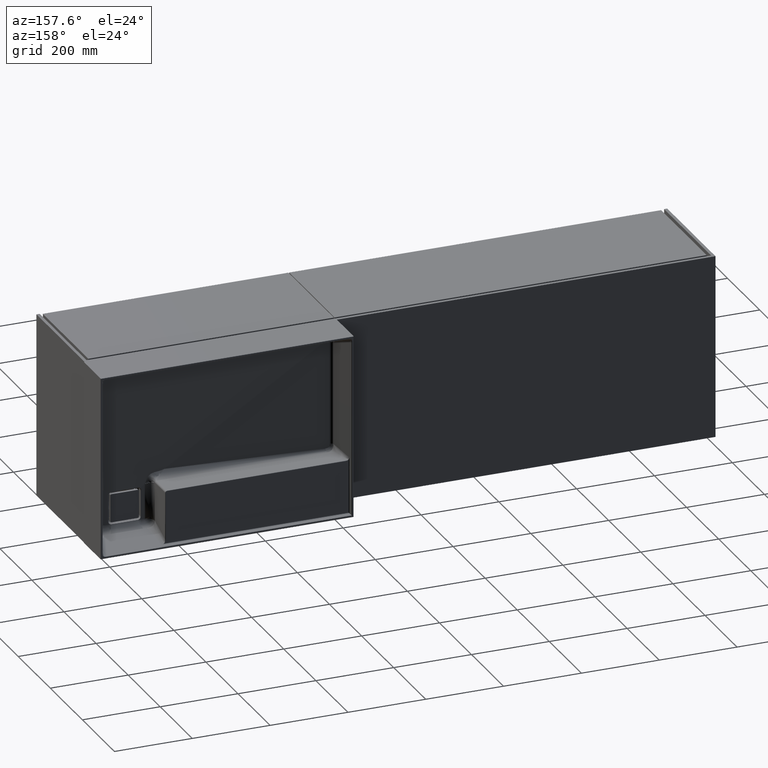
[diagram: clean part render]
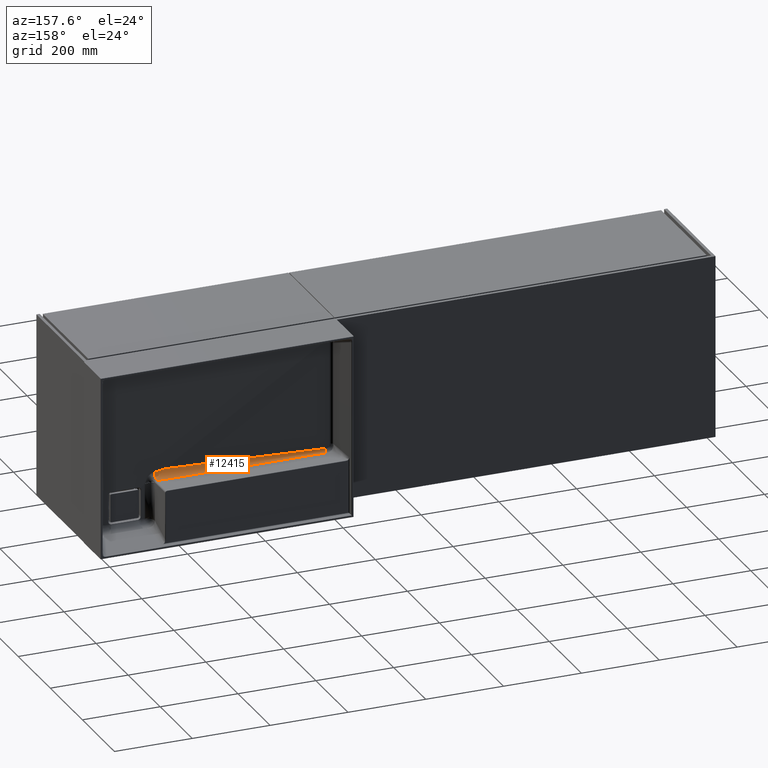
[diagram: same view with one face highlighted and labeled with its STEP entity id]
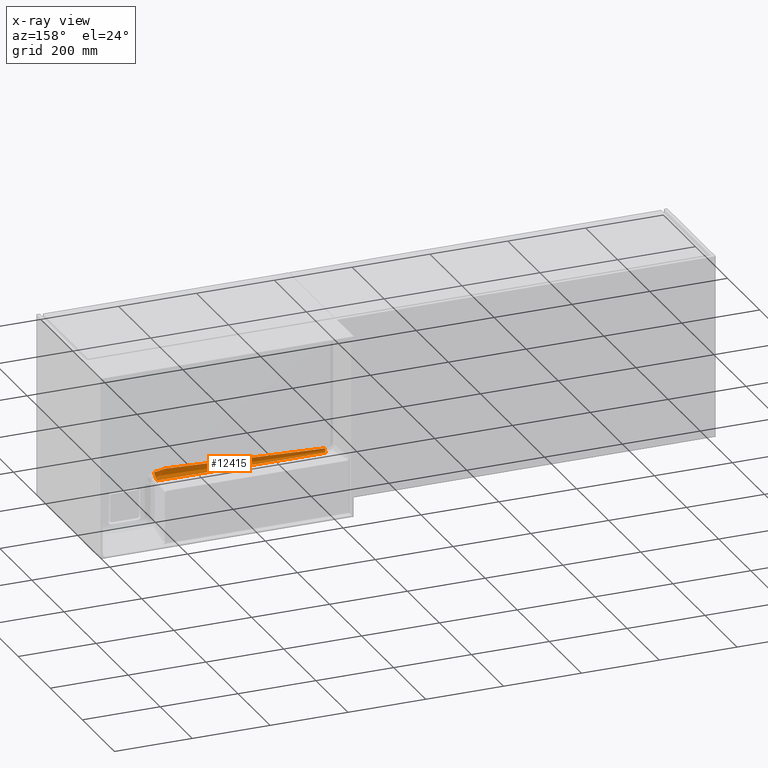
[diagram: x-ray of the same camera — body ghosted, the highlighted face saturated]
A machine part, auxiliary view. The second image highlights one B-rep face of the part: STEP entity #12415.
The next image is the same camera in x-ray: the body ghosted, the highlighted face saturated — about 0% of this face is hidden behind the body in this view.
In plain terms, the highlighted face is a freeform B-spline surface patch.
Its self-contained STEP definition (entity closure, byte-faithful):
#721 = CARTESIAN_POINT ( 'NONE',  ( 1018.068024518727725, 329.4440480074061384, -315.4900018526547569 ) ) ;
#1110 = CARTESIAN_POINT ( 'NONE',  ( 1451.584780743779675, 334.5450962275781421, -323.4169326313426609 ) ) ;
#1134 = CARTESIAN_POINT ( 'NONE',  ( 1425.672703907353252, 316.8349497930412895, -304.5496662463541497 ) ) ;
#1155 = CARTESIAN_POINT ( 'NONE',  ( 1162.628033684732827, 332.7665495266904827, -323.3703597469259421 ) ) ;
#1210 = CARTESIAN_POINT ( 'NONE',  ( 1436.064008319416871, 316.7100343581346920, -307.2012362778854708 ) ) ;
#1393 = CARTESIAN_POINT ( 'NONE',  ( 1451.584780743779675, 334.5450962275781421, -323.4169326313426609 ) ) ;
#1401 =( BOUNDED_SURFACE ( )  B_SPLINE_SURFACE ( 2, 3, ( 
 ( #721, #5705, #10708, #15700 ),
 ( #4482, #9479, #14474, #3261 ),
 ( #8245, #13250, #2024, #7013 ) ),
 .UNSPECIFIED., .F., .F., .F. ) 
 B_SPLINE_SURFACE_WITH_KNOTS ( ( 3, 3 ),
 ( 4, 4 ),
 ( 0.0000000000000000000, 1.000000000000000000 ),
 ( -0.4346882425457793686, -0.001543048426497325726 ),
 .UNSPECIFIED. ) 
 GEOMETRIC_REPRESENTATION_ITEM ( )  RATIONAL_B_SPLINE_SURFACE ( (
 ( 1.000000000000000000, 1.000000000000000000, 1.000000000000000000, 1.000000000000000000),
 ( 0.7162975751252874668, 0.7162975751252874668, 0.7162975751252874668, 0.7162975751252874668),
 ( 1.000000000000000000, 1.000000000000000000, 1.000000000000000000, 1.000000000000000000) ) ) 
 REPRESENTATION_ITEM ( '' )  SURFACE ( )  );
#2024 = CARTESIAN_POINT ( 'NONE',  ( 1307.272130256824084, 339.0093540719751104, -323.5338333371205977 ) ) ;
#2106 = ORIENTED_EDGE ( 'NONE', *, *, #5230, .T. ) ;
#2314 = CARTESIAN_POINT ( 'NONE',  ( 1451.018727805432036, 316.6229568114037534, -309.0496244574869706 ) ) ;
#2449 = CARTESIAN_POINT ( 'NONE',  ( 1431.297888460273043, 316.7503751772958935, -306.3449249084025041 ) ) ;
#2659 =( BOUNDED_CURVE ( )  B_SPLINE_CURVE ( 2, ( #15741, #4521, #9515 ),
 .UNSPECIFIED., .F., .F. ) 
 B_SPLINE_CURVE_WITH_KNOTS ( ( 3, 3 ),
 ( 0.0000000000000000000, 1.000000000000000000 ),
 .UNSPECIFIED. ) 
 CURVE ( )  GEOMETRIC_REPRESENTATION_ITEM ( )  RATIONAL_B_SPLINE_CURVE ( ( 1.000000000000000000, 0.7162975751252874668, 1.000000000000000000 ) ) 
 REPRESENTATION_ITEM ( '' )  );
#3261 = CARTESIAN_POINT ( 'NONE',  ( 1451.012282959695995, 316.0510793981750339, -322.9326497571487380 ) ) ;
#3668 = VERTEX_POINT ( 'NONE', #4478 ) ;
#3678 = CARTESIAN_POINT ( 'NONE',  ( 1429.195135619317170, 316.7731144977071267, -305.8622391571537946 ) ) ;
#4351 = CARTESIAN_POINT ( 'NONE',  ( 1425.672703907353252, 316.8349497930412895, -304.5496662463541497 ) ) ;
#4478 = CARTESIAN_POINT ( 'NONE',  ( 1425.672703907353252, 316.8349497930412895, -304.5496662463541497 ) ) ;
#4482 = CARTESIAN_POINT ( 'NONE',  ( 1018.074331499563414, 329.4438529033142800, -323.2833518737481882 ) ) ;
#4521 = CARTESIAN_POINT ( 'NONE',  ( 1018.074331499563527, 329.4438529033142800, -323.2833518737481882 ) ) ;
#4547 = EDGE_CURVE ( 'NONE', #13106, #14800, #5325, .T. ) ;
#4900 = CARTESIAN_POINT ( 'NONE',  ( 1426.885109507924653, 316.8069209751064932, -305.1446317420962941 ) ) ;
#4977 = CARTESIAN_POINT ( 'NONE',  ( 1446.735516287873224, 316.6443237527143992, -308.5960700885871688 ) ) ;
#5230 = EDGE_CURVE ( 'NONE', #14800, #9008, #2659, .T. ) ;
#5325 = B_SPLINE_CURVE_WITH_KNOTS ( 'NONE', 3,
 ( #7375, #12365, #1155, #6153 ),
 .UNSPECIFIED., .F., .F.,
 ( 4, 4 ),
 ( -0.4346882425457793686, -0.001543048426497328762 ),
 .UNSPECIFIED. ) ;
#5575 = CARTESIAN_POINT ( 'NONE',  ( 1018.068024518727725, 329.4440480074061384, -315.4900018526547569 ) ) ;
#5705 = CARTESIAN_POINT ( 'NONE',  ( 1162.380675005438661, 324.9797901723597420, -315.3731011471215879 ) ) ;
#6104 = CARTESIAN_POINT ( 'NONE',  ( 1451.138640121381513, 320.1329318382711335, -323.0395368250019601 ) ) ;
#6131 = CARTESIAN_POINT ( 'NONE',  ( 1425.903433881881483, 316.8278122476279464, -304.7011743568679094 ) ) ;
#6153 = CARTESIAN_POINT ( 'NONE',  ( 1018.315383198061568, 337.2308073616522393, -323.4872604524568942 ) ) ;
#6208 = CARTESIAN_POINT ( 'NONE',  ( 1437.127666965743856, 316.7024201626879858, -307.3628622008577054 ) ) ;
#6788 = CARTESIAN_POINT ( 'NONE',  ( 1018.315383198061568, 337.2308073616522393, -323.4872604524568942 ) ) ;
#6939 = FACE_OUTER_BOUND ( 'NONE', #8307, .T. ) ;
#7013 = CARTESIAN_POINT ( 'NONE',  ( 1451.584780743535021, 334.5450962369287140, -323.4169326315874287 ) ) ;
#7240 = ORIENTED_EDGE ( 'NONE', *, *, #4547, .T. ) ;
#7297 = ORIENTED_EDGE ( 'NONE', *, *, #8113, .T. ) ;
#7375 = CARTESIAN_POINT ( 'NONE',  ( 1451.584780743779675, 334.5450962275781421, -323.4169326313426609 ) ) ;
#7431 = CARTESIAN_POINT ( 'NONE',  ( 1432.881509471890013, 316.7354091234107614, -306.6626081474768171 ) ) ;
#8113 = EDGE_CURVE ( 'NONE', #3668, #12213, #14425, .T. ) ;
#8245 = CARTESIAN_POINT ( 'NONE',  ( 1018.315383198022118, 337.2308073617368223, -323.4872604524591111 ) ) ;
#8307 = EDGE_LOOP ( 'NONE', ( #7297, #12774, #7240, #2106, #8635 ) ) ;
#8485 = B_SPLINE_CURVE_WITH_KNOTS ( 'NONE', 3,
 ( #5575, #10575, #15570, #4351 ),
 .UNSPECIFIED., .F., .F.,
 ( 4, 4 ),
 ( -0.4346882425457793686, -0.02687985659662373017 ),
 .UNSPECIFIED. ) ;
#8635 = ORIENTED_EDGE ( 'NONE', *, *, #9257, .T. ) ;
#8668 = CARTESIAN_POINT ( 'NONE',  ( 1429.719870846287222, 316.7670150134593996, -305.9917124256154466 ) ) ;
#8699 = CARTESIAN_POINT ( 'NONE',  ( 1018.068024518727725, 329.4440480074061384, -315.4900018526547569 ) ) ;
#9008 = VERTEX_POINT ( 'NONE', #8699 ) ;
#9257 = EDGE_CURVE ( 'NONE', #9008, #3668, #8485, .T. ) ;
#9479 = CARTESIAN_POINT ( 'NONE',  ( 1162.386981986274122, 324.9795950682678267, -323.1664511682149055 ) ) ;
#9515 = CARTESIAN_POINT ( 'NONE',  ( 1018.068024518727725, 329.4440480074061384, -315.4900018526547569 ) ) ;
#9743 = EDGE_CURVE ( 'NONE', #13106, #12213, #13756, .T. ) ;
#9894 = CARTESIAN_POINT ( 'NONE',  ( 1427.642030155778230, 316.7939460989397844, -305.4200484096358537 ) ) ;
#9975 = CARTESIAN_POINT ( 'NONE',  ( 1448.876548386070908, 316.6333546551162499, -308.8289102535022153 ) ) ;
#10575 = CARTESIAN_POINT ( 'NONE',  ( 1153.939113165328990, 325.2409267287021066, -315.3799392485047974 ) ) ;
#10708 = CARTESIAN_POINT ( 'NONE',  ( 1306.684653393500412, 320.5158006054395514, -304.5403441625850292 ) ) ;
#11101 = CARTESIAN_POINT ( 'NONE',  ( 1451.018727805432036, 316.6229568114037534, -309.0496244574869706 ) ) ;
#11126 = CARTESIAN_POINT ( 'NONE',  ( 1426.144738645146163, 316.8220531439236538, -304.8234223945271992 ) ) ;
#11202 = CARTESIAN_POINT ( 'NONE',  ( 1440.322834579600567, 316.6808296650964962, -307.8211619812081494 ) ) ;
#12213 = VERTEX_POINT ( 'NONE', #2314 ) ;
#12365 = CARTESIAN_POINT ( 'NONE',  ( 1307.272130256824084, 339.0093540719751104, -323.5338333371205977 ) ) ;
#12415 = ADVANCED_FACE ( 'NONE', ( #6939 ), #1401, .F. ) ;
#12422 = CARTESIAN_POINT ( 'NONE',  ( 1433.940962444133675, 316.7265386575339221, -306.8509008232535393 ) ) ;
#12774 = ORIENTED_EDGE ( 'NONE', *, *, #9743, .F. ) ;
#13106 = VERTEX_POINT ( 'NONE', #1393 ) ;
#13250 = CARTESIAN_POINT ( 'NONE',  ( 1162.628033684732827, 332.7665495266904827, -323.3703597469259421 ) ) ;
#13672 = CARTESIAN_POINT ( 'NONE',  ( 1430.770955481897090, 316.7556448546313845, -306.2330658854569378 ) ) ;
#13756 =( BOUNDED_CURVE ( )  B_SPLINE_CURVE ( 2, ( #1110, #6104, #11101 ),
 .UNSPECIFIED., .F., .T. ) 
 B_SPLINE_CURVE_WITH_KNOTS ( ( 3, 3 ),
 ( 0.0000000000000000000, 1.000000000000000000 ),
 .UNSPECIFIED. ) 
 CURVE ( )  GEOMETRIC_REPRESENTATION_ITEM ( )  RATIONAL_B_SPLINE_CURVE ( ( 1.000000000000000000, 0.7641457412185796993, 0.9204434452545302570 ) ) 
 REPRESENTATION_ITEM ( '' )  );
#14425 = B_SPLINE_CURVE_WITH_KNOTS ( 'NONE', 3,
 ( #1134, #6131, #11126, #16117, #4900, #9894, #14893, #3678, #8668, #13672, #2449, #7431, #12422, #1210, #6208, #11202, #16194, #4977, #9975, #14974 ),
 .UNSPECIFIED., .F., .F.,
 ( 4, 2, 2, 2, 2, 2, 2, 2, 2, 4 ),
 ( 0.0000000000000000000, 0.0008055719474766645516, 0.001611143894953329103, 0.003222287789906032405, 0.004833431684858734839, 0.006444575579811437707, 0.009666863369716158227, 0.01288915115962087701, 0.01933372673942968661, 0.02577830231923849275 ),
 .UNSPECIFIED. ) ;
#14474 = CARTESIAN_POINT ( 'NONE',  ( 1306.699632472985286, 320.5153372332214303, -323.0495504626818501 ) ) ;
#14800 = VERTEX_POINT ( 'NONE', #6788 ) ;
#14893 = CARTESIAN_POINT ( 'NONE',  ( 1428.156628572262434, 316.7865976977785181, -305.5760323383937589 ) ) ;
#14974 = CARTESIAN_POINT ( 'NONE',  ( 1451.018727805432036, 316.6229568114037534, -309.0496244574869706 ) ) ;
#15570 = CARTESIAN_POINT ( 'NONE',  ( 1289.802514588332315, 321.0380432513831579, -305.7710013909584177 ) ) ;
#15700 = CARTESIAN_POINT ( 'NONE',  ( 1450.997303880211120, 316.0515427703931550, -304.4234434570518602 ) ) ;
#15741 = CARTESIAN_POINT ( 'NONE',  ( 1018.315383198061568, 337.2308073616522393, -323.4872604524568942 ) ) ;
#16117 = CARTESIAN_POINT ( 'NONE',  ( 1426.635324151836357, 316.8115746191032258, -305.0458492099916725 ) ) ;
#16194 = CARTESIAN_POINT ( 'NONE',  ( 1442.458447236064103, 316.6680791695544031, -308.0918157390210013 ) ) ;